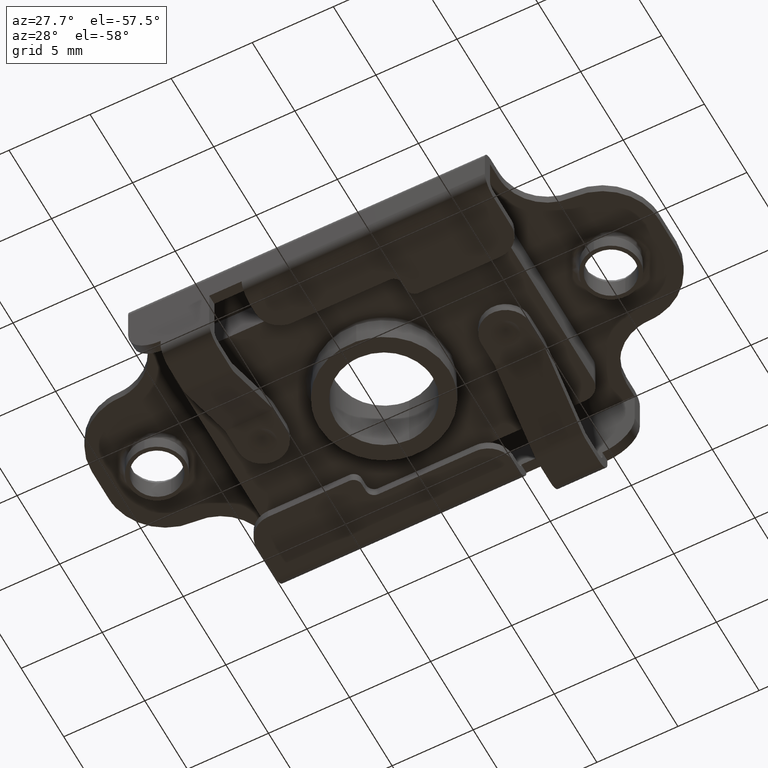
[diagram: clean part render]
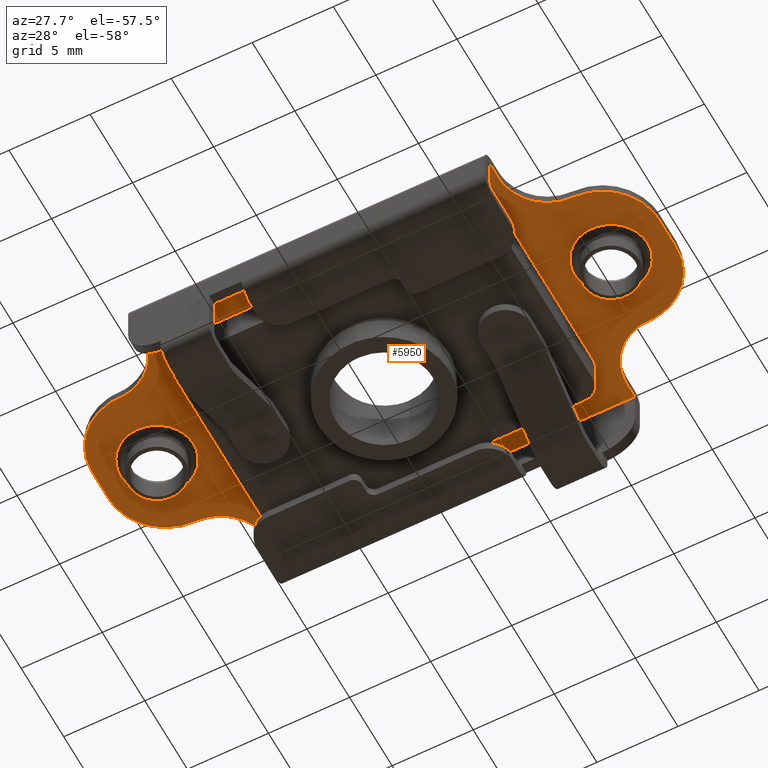
[diagram: same view with one face highlighted and labeled with its STEP entity id]
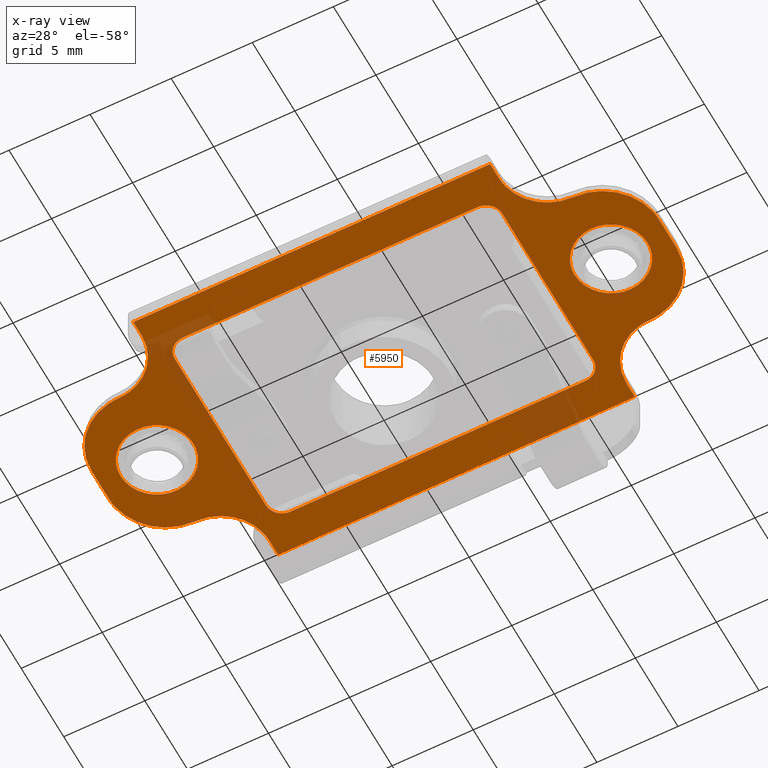
[diagram: x-ray of the same camera — body ghosted, the highlighted face saturated]
A machine part, auxiliary view. The second image highlights one B-rep face of the part: STEP entity #5950.
The next image is the same camera in x-ray: the body ghosted, the highlighted face saturated — about 6% of this face is hidden behind the body in this view.
In plain terms, the highlighted face is a freeform B-spline surface patch.
Its self-contained STEP definition (entity closure, byte-faithful):
#2205=CARTESIAN_POINT('',(16.249822349272051,0.028273589735216,-0.600000000000000));
#2206=VERTEX_POINT('',#2205);
#2220=CARTESIAN_POINT('',(11.750177651380509,-0.028273589695669,-0.600000000000000));
#2221=VERTEX_POINT('',#2220);
#2222=CARTESIAN_POINT('',(16.249822349272051,0.028273589735216,-0.600000000000000));
#2223=CARTESIAN_POINT('',(16.249868961176379,-0.155074582980609,-0.600000000000001));
#2224=CARTESIAN_POINT('',(16.214890493815862,-0.439214127587054,-0.600000000000001));
#2225=CARTESIAN_POINT('',(16.085641356226049,-0.841600610339706,-0.600000000000000));
#2226=CARTESIAN_POINT('',(15.911022143107131,-1.186537129788026,-0.600000000000001));
#2227=CARTESIAN_POINT('',(15.658064069194070,-1.514856468076055,-0.600000000000006));
#2228=CARTESIAN_POINT('',(15.377650026891530,-1.767156618682035,-0.599999999999994));
#2229=CARTESIAN_POINT('',(15.047485700475100,-1.984110532247248,-0.600000000000011));
#2230=CARTESIAN_POINT('',(14.657678340711300,-2.151467989527296,-0.599999999999997));
#2231=CARTESIAN_POINT('',(14.151124650974531,-2.250332595561026,-0.599999999999995));
#2232=CARTESIAN_POINT('',(13.624675098206980,-2.229728872390857,-0.600000000000014));
#2233=CARTESIAN_POINT('',(13.137455468611890,-2.087234093256446,-0.599999999999975));
#2234=CARTESIAN_POINT('',(12.707756053630821,-1.856021670591385,-0.600000000000042));
#2235=CARTESIAN_POINT('',(12.376883656140951,-1.575442690137467,-0.599999999999991));
#2236=CARTESIAN_POINT('',(12.142748773478360,-1.279873596241708,-0.599999999999998));
#2237=CARTESIAN_POINT('',(11.969718028987620,-0.987530114943571,-0.600000000000002));
#2238=CARTESIAN_POINT('',(11.806550452481780,-0.586780904912975,-0.599999999999998));
#2239=CARTESIAN_POINT('',(11.752744092535041,-0.239100782048568,-0.600000000000008));
#2240=CARTESIAN_POINT('',(11.750177651380509,-0.028273589695669,-0.600000000000000));
#2241=B_SPLINE_CURVE_WITH_KNOTS('',3,(#2222,#2223,#2224,#2225,#2226,#2227,#2228,#2229,#2230,#2231,#2232,#2233,#2234,#2235,#2236,#2237,#2238,#2239,#2240),.UNSPECIFIED.,.F.,.U.,(4,1,1,1,1,1,1,1,1,1,1,1,1,1,1,1,4),(0.000000023455083,0.550022748523062,0.852546862055186,1.265069192032739,1.705097930552308,2.090127417276149,2.392650281685221,2.887671057599604,3.355216179780276,3.932705456186750,4.455255312223543,4.867779985581773,5.390311354890931,5.747839009956027,5.995349128207178,6.407886864951183,7.040405284820220),.UNSPECIFIED.);
#2242=EDGE_CURVE('',#2206,#2221,#2241,.T.);
#2289=CARTESIAN_POINT('',(11.750177651380509,-0.028273589695669,-0.600000000000000));
#2290=CARTESIAN_POINT('',(11.750070041499720,0.200922908752787,-0.600000000000000));
#2291=CARTESIAN_POINT('',(11.803872274193431,0.549152881083157,-0.600000000000000));
#2292=CARTESIAN_POINT('',(12.003521775819969,1.043753365192396,-0.599999999999999));
#2293=CARTESIAN_POINT('',(12.242773803916901,1.405873422915777,-0.600000000000000));
#2294=CARTESIAN_POINT('',(12.589035616590539,1.749210707887518,-0.600000000000001));
#2295=CARTESIAN_POINT('',(12.912940411698891,1.962040333866185,-0.599999999999991));
#2296=CARTESIAN_POINT('',(13.300010740291039,2.130976256539642,-0.600000000000004));
#2297=CARTESIAN_POINT('',(13.666584075650739,2.223599305264771,-0.599999999999999));
#2298=CARTESIAN_POINT('',(14.098418510393699,2.246256959715579,-0.600000000000001));
#2299=CARTESIAN_POINT('',(14.445503702015790,2.202654077450203,-0.600000000000000));
#2300=CARTESIAN_POINT('',(14.790391000212390,2.106383453410027,-0.600000000000000));
#2301=CARTESIAN_POINT('',(15.118273047621120,1.960063611459128,-0.600000000000000));
#2302=CARTESIAN_POINT('',(15.421239118802481,1.750707075522399,-0.600000000000000));
#2303=CARTESIAN_POINT('',(15.674495023136959,1.510544701272499,-0.600000000000001));
#2304=CARTESIAN_POINT('',(15.857254917510421,1.279877299312730,-0.599999999999988));
#2305=CARTESIAN_POINT('',(16.030282789167241,0.987530370707231,-0.600000000000044));
#2306=CARTESIAN_POINT('',(16.193444749995621,0.586780025677450,-0.599999999999877));
#2307=CARTESIAN_POINT('',(16.247260407342981,0.239101058647580,-0.600000000000136));
#2308=CARTESIAN_POINT('',(16.249822349272051,0.028273589735216,-0.600000000000000));
#2309=B_SPLINE_CURVE_WITH_KNOTS('',3,(#2289,#2290,#2291,#2292,#2293,#2294,#2295,#2296,#2297,#2298,#2299,#2300,#2301,#2302,#2303,#2304,#2305,#2306,#2307,#2308),.UNSPECIFIED.,.F.,.U.,(4,1,1,1,1,1,1,1,1,1,1,1,1,1,1,1,1,4),(0.000000023418310,0.687520424350454,1.045057111000021,1.595089425779893,1.980118746482583,2.502658285844771,2.750168521725002,3.245198569147865,3.630188719641747,4.042714709031768,4.290230233384669,4.702761100596416,5.115291661199729,5.390311354858740,5.747839009923992,5.995349128175244,6.407886864919536,7.040405284789035),.UNSPECIFIED.);
#2310=EDGE_CURVE('',#2221,#2206,#2309,.T.);
#2339=CARTESIAN_POINT('',(-11.750178108602030,0.028269875175571,-0.600000000000510));
#2340=VERTEX_POINT('',#2339);
#2354=CARTESIAN_POINT('',(-11.749999999998700,0.0,-0.600000000000000));
#2355=VERTEX_POINT('',#2354);
#2356=CARTESIAN_POINT('',(-11.750178108602022,0.028269875175571,-0.600000000000510));
#2357=CARTESIAN_POINT('',(-11.750000252328791,0.014135495481185,-0.600000000000255));
#2358=CARTESIAN_POINT('',(-11.749999999998700,0.0,-0.600000000000000));
#2366=(BOUNDED_CURVE()B_SPLINE_CURVE(2,(#2356,#2357,#2358),.UNSPECIFIED.,.F.,.U.)B_SPLINE_CURVE_WITH_KNOTS((3,3),(0.497784585790868,0.500000000000000),.UNSPECIFIED.)CURVE()GEOMETRIC_REPRESENTATION_ITEM()RATIONAL_B_SPLINE_CURVE((0.994854962811093,0.997404480805129,1.0))REPRESENTATION_ITEM(''));
#2367=EDGE_CURVE('',#2340,#2355,#2366,.T.);
#2369=CARTESIAN_POINT('',(-16.249821891395381,-0.028269875175571,-0.600000000000510));
#2370=VERTEX_POINT('',#2369);
#2371=CARTESIAN_POINT('',(-11.749999999998700,0.0,-0.600000000000000));
#2372=CARTESIAN_POINT('',(-11.749956235476899,-0.183342578748912,-0.600000000000000));
#2373=CARTESIAN_POINT('',(-11.789440152652141,-0.504165841099561,-0.600000000000003));
#2374=CARTESIAN_POINT('',(-11.935190249514401,-0.921306614148026,-0.600000000000024));
#2375=CARTESIAN_POINT('',(-12.140674529128541,-1.291072558426771,-0.600000000000043));
#2376=CARTESIAN_POINT('',(-12.442473395216821,-1.651843005528050,-0.600000000000078));
#2377=CARTESIAN_POINT('',(-12.819763638754660,-1.933842452002718,-0.600000000000133));
#2378=CARTESIAN_POINT('',(-13.185843180060701,-2.106212956163256,-0.600000000000149));
#2379=CARTESIAN_POINT('',(-13.511256422455739,-2.204575305044570,-0.600000000000232));
#2380=CARTESIAN_POINT('',(-13.875126045774250,-2.258404691218514,-0.600000000000206));
#2381=CARTESIAN_POINT('',(-14.271008172442130,-2.246374590128269,-0.600000000000284));
#2382=CARTESIAN_POINT('',(-14.693598461891810,-2.154657851744259,-0.600000000000348));
#2383=CARTESIAN_POINT('',(-15.049659799025640,-2.002781560055166,-0.600000000000363));
#2384=CARTESIAN_POINT('',(-15.396792391704100,-1.778166270986065,-0.600000000000434));
#2385=CARTESIAN_POINT('',(-15.721899218648799,-1.478120319890378,-0.600000000000437));
#2386=CARTESIAN_POINT('',(-15.992771907101700,-1.081535064044132,-0.600000000000497));
#2387=CARTESIAN_POINT('',(-16.193450028831400,-0.586746660941460,-0.600000000000475));
#2388=CARTESIAN_POINT('',(-16.247262637047861,-0.239101691505174,-0.600000000000546));
#2389=CARTESIAN_POINT('',(-16.249821891395381,-0.028269875175571,-0.600000000000510));
#2390=B_SPLINE_CURVE_WITH_KNOTS('',3,(#2371,#2372,#2373,#2374,#2375,#2376,#2377,#2378,#2379,#2380,#2381,#2382,#2383,#2384,#2385,#2386,#2387,#2388,#2389),.UNSPECIFIED.,.F.,.U.,(4,1,1,1,1,1,1,1,1,1,1,1,1,1,1,1,4),(0.000000083039314,0.550019181820805,0.962544333547460,1.320059997413197,1.815093816450222,2.365124562014448,2.722654968665218,3.025154897589392,3.382694731700840,3.822671495439055,4.207695085859922,4.675234515314630,4.977751087349565,5.445278737984914,5.995308736710900,6.407842729461685,7.040356271197775),.UNSPECIFIED.);
#2391=EDGE_CURVE('',#2355,#2370,#2390,.T.);
#2437=CARTESIAN_POINT('',(-16.249999999998700,0.0,-0.600000000000000));
#2438=VERTEX_POINT('',#2437);
#2439=CARTESIAN_POINT('',(-16.249821891395378,-0.028269875175571,-0.600000000000510));
#2440=CARTESIAN_POINT('',(-16.249999747668603,-0.014135495481185,-0.600000000000255));
#2441=CARTESIAN_POINT('',(-16.249999999998700,0.0,-0.600000000000000));
#2449=(BOUNDED_CURVE()B_SPLINE_CURVE(2,(#2439,#2440,#2441),.UNSPECIFIED.,.F.,.U.)B_SPLINE_CURVE_WITH_KNOTS((3,3),(0.997784585790868,1.0),.UNSPECIFIED.)CURVE()GEOMETRIC_REPRESENTATION_ITEM()RATIONAL_B_SPLINE_CURVE((0.994854962811093,0.997404480805129,1.0))REPRESENTATION_ITEM(''));
#2450=EDGE_CURVE('',#2370,#2438,#2449,.T.);
#2452=CARTESIAN_POINT('',(-16.249999999998700,0.0,-0.600000000000000));
#2453=CARTESIAN_POINT('',(-16.250033262811979,0.183338840590910,-0.600000000000001));
#2454=CARTESIAN_POINT('',(-16.202714118717989,0.568352588159576,-0.600000000000003));
#2455=CARTESIAN_POINT('',(-16.021386253188631,1.023834810570992,-0.600000000000032));
#2456=CARTESIAN_POINT('',(-15.794536155981771,1.369511871202419,-0.600000000000050));
#2457=CARTESIAN_POINT('',(-15.551806512359169,1.645674260123426,-0.600000000000079));
#2458=CARTESIAN_POINT('',(-15.263391889499010,1.875300846549942,-0.600000000000123));
#2459=CARTESIAN_POINT('',(-14.916914657311770,2.065165626361963,-0.600000000000131));
#2460=CARTESIAN_POINT('',(-14.604744814468051,2.176430734690868,-0.600000000000192));
#2461=CARTESIAN_POINT('',(-14.252982352881370,2.243940470345719,-0.600000000000232));
#2462=CARTESIAN_POINT('',(-13.885311384616740,2.259746003539489,-0.600000000000266));
#2463=CARTESIAN_POINT('',(-13.411038921970510,2.192786030630392,-0.600000000000324));
#2464=CARTESIAN_POINT('',(-12.937194044265420,2.007568378633656,-0.600000000000377));
#2465=CARTESIAN_POINT('',(-12.574851730337610,1.753724290934835,-0.600000000000425));
#2466=CARTESIAN_POINT('',(-12.291390888593799,1.478940458953731,-0.600000000000454));
#2467=CARTESIAN_POINT('',(-12.037465168424200,1.139416210193813,-0.600000000000471));
#2468=CARTESIAN_POINT('',(-11.813599454709030,0.632498147490441,-0.600000000000517));
#2469=CARTESIAN_POINT('',(-11.752742065225959,0.239101032148147,-0.600000000000485));
#2470=CARTESIAN_POINT('',(-11.750178108602030,0.028269875175571,-0.600000000000510));
#2471=B_SPLINE_CURVE_WITH_KNOTS('',3,(#2452,#2453,#2454,#2455,#2456,#2457,#2458,#2459,#2460,#2461,#2462,#2463,#2464,#2465,#2466,#2467,#2468,#2469,#2470),.UNSPECIFIED.,.F.,.U.,(4,1,1,1,1,1,1,1,1,1,1,1,1,1,1,1,4),(0.000000083083259,0.550019181861420,1.155058916824270,1.457574150048070,1.787591775014343,2.255116090851423,2.557635025094956,2.970170823171228,3.245185369694864,3.630174966332410,4.070187167839110,4.675234515329521,5.142757976905155,5.390273561231716,5.857806580141395,6.407842729465715,7.040356271197805),.UNSPECIFIED.);
#2472=EDGE_CURVE('',#2438,#2340,#2471,.T.);
#3224=CARTESIAN_POINT('',(-11.000000000000901,8.500000000000000,-0.600000000000000));
#3225=VERTEX_POINT('',#3224);
#3281=CARTESIAN_POINT('',(11.000000000000600,8.500000000000000,-0.600000000000000));
#3282=VERTEX_POINT('',#3281);
#3288=CARTESIAN_POINT('',(11.000000000000600,8.500000000000000,-0.600000000000000));
#3289=CARTESIAN_POINT('',(-11.000000000000901,8.500000000000000,-0.600000000000000));
#3290=QUASI_UNIFORM_CURVE('',1,(#3288,#3289),.UNSPECIFIED.,.F.,.U.);
#3291=EDGE_CURVE('',#3282,#3225,#3290,.T.);
#4201=CARTESIAN_POINT('',(-9.100000000000000,6.350000000000000,-0.600000000000000));
#4202=VERTEX_POINT('',#4201);
#4203=CARTESIAN_POINT('',(9.100000000000000,6.350000000000000,-0.599999999999712));
#4204=VERTEX_POINT('',#4203);
#4205=CARTESIAN_POINT('',(-9.100000000000000,6.350000000000000,-0.600000000000000));
#4206=CARTESIAN_POINT('',(9.100000000000000,6.350000000000000,-0.599999999999712));
#4207=QUASI_UNIFORM_CURVE('',1,(#4205,#4206),.UNSPECIFIED.,.F.,.U.);
#4208=EDGE_CURVE('',#4202,#4204,#4207,.T.);
#4238=CARTESIAN_POINT('',(-10.100000000000000,5.350000000000000,-0.600000000000045));
#4239=VERTEX_POINT('',#4238);
#4240=CARTESIAN_POINT('',(-10.100000000000000,5.350000000000000,-0.600000000000045));
#4241=CARTESIAN_POINT('',(-10.100000000000001,6.350000000000000,-0.599999999999712));
#4242=CARTESIAN_POINT('',(-9.100000000000000,6.350000000000000,-0.599999999999712));
#4250=(BOUNDED_CURVE()B_SPLINE_CURVE(2,(#4240,#4241,#4242),.UNSPECIFIED.,.F.,.U.)CURVE()GEOMETRIC_REPRESENTATION_ITEM()QUASI_UNIFORM_CURVE()RATIONAL_B_SPLINE_CURVE((1.0,0.707106781186548,1.0))REPRESENTATION_ITEM(''));
#4251=EDGE_CURVE('',#4239,#4202,#4250,.T.);
#4268=CARTESIAN_POINT('',(-10.100000000000000,-5.350000000000000,-0.600000000000000));
#4269=VERTEX_POINT('',#4268);
#4270=CARTESIAN_POINT('',(-10.100000000000000,-5.350000000000000,-0.600000000000000));
#4271=CARTESIAN_POINT('',(-10.100000000000000,5.350000000000000,-0.600000000000045));
#4272=QUASI_UNIFORM_CURVE('',1,(#4270,#4271),.UNSPECIFIED.,.F.,.U.);
#4273=EDGE_CURVE('',#4269,#4239,#4272,.T.);
#4299=CARTESIAN_POINT('',(-9.100000000000000,-6.350000000000000,-0.600000000000045));
#4300=VERTEX_POINT('',#4299);
#4301=CARTESIAN_POINT('',(-9.100000000000000,-6.350000000000000,-0.600000000000045));
#4302=CARTESIAN_POINT('',(-10.100000000000001,-6.350000000000000,-0.599999999999712));
#4303=CARTESIAN_POINT('',(-10.100000000000000,-5.350000000000000,-0.599999999999712));
#4311=(BOUNDED_CURVE()B_SPLINE_CURVE(2,(#4301,#4302,#4303),.UNSPECIFIED.,.F.,.U.)CURVE()GEOMETRIC_REPRESENTATION_ITEM()QUASI_UNIFORM_CURVE()RATIONAL_B_SPLINE_CURVE((1.0,0.707106781186548,1.0))REPRESENTATION_ITEM(''));
#4312=EDGE_CURVE('',#4300,#4269,#4311,.T.);
#4329=CARTESIAN_POINT('',(9.100000000000000,-6.350000000000000,-0.600000000000000));
#4330=VERTEX_POINT('',#4329);
#4331=CARTESIAN_POINT('',(9.100000000000000,-6.350000000000000,-0.600000000000000));
#4332=CARTESIAN_POINT('',(-9.100000000000000,-6.350000000000000,-0.600000000000045));
#4333=QUASI_UNIFORM_CURVE('',1,(#4331,#4332),.UNSPECIFIED.,.F.,.U.);
#4334=EDGE_CURVE('',#4330,#4300,#4333,.T.);
#4360=CARTESIAN_POINT('',(10.100000000000000,-5.350000000000000,-0.600000000000045));
#4361=VERTEX_POINT('',#4360);
#4362=CARTESIAN_POINT('',(10.100000000000000,-5.350000000000000,-0.600000000000045));
#4363=CARTESIAN_POINT('',(10.100000000000001,-6.350000000000000,-0.599999999999712));
#4364=CARTESIAN_POINT('',(9.100000000000000,-6.350000000000000,-0.599999999999712));
#4372=(BOUNDED_CURVE()B_SPLINE_CURVE(2,(#4362,#4363,#4364),.UNSPECIFIED.,.F.,.U.)CURVE()GEOMETRIC_REPRESENTATION_ITEM()QUASI_UNIFORM_CURVE()RATIONAL_B_SPLINE_CURVE((1.0,0.707106781186548,1.0))REPRESENTATION_ITEM(''));
#4373=EDGE_CURVE('',#4361,#4330,#4372,.T.);
#4390=CARTESIAN_POINT('',(10.100000000000000,5.350000000000000,-0.600000000000000));
#4391=VERTEX_POINT('',#4390);
#4392=CARTESIAN_POINT('',(10.100000000000000,5.350000000000000,-0.600000000000000));
#4393=CARTESIAN_POINT('',(10.100000000000000,-5.350000000000000,-0.600000000000045));
#4394=QUASI_UNIFORM_CURVE('',1,(#4392,#4393),.UNSPECIFIED.,.F.,.U.);
#4395=EDGE_CURVE('',#4391,#4361,#4394,.T.);
#4421=CARTESIAN_POINT('',(9.100000000000000,6.350000000000000,-0.599999999999712));
#4422=CARTESIAN_POINT('',(10.100000000000001,6.350000000000000,-0.599999999999712));
#4423=CARTESIAN_POINT('',(10.100000000000000,5.350000000000000,-0.599999999999712));
#4431=(BOUNDED_CURVE()B_SPLINE_CURVE(2,(#4421,#4422,#4423),.UNSPECIFIED.,.F.,.U.)CURVE()GEOMETRIC_REPRESENTATION_ITEM()QUASI_UNIFORM_CURVE()RATIONAL_B_SPLINE_CURVE((1.0,0.707106781186548,1.0))REPRESENTATION_ITEM(''));
#4432=EDGE_CURVE('',#4204,#4391,#4431,.T.);
#5328=CARTESIAN_POINT('',(11.000000000000480,-7.500000000000000,-0.600000000000045));
#5329=VERTEX_POINT('',#5328);
#5335=CARTESIAN_POINT('',(13.999999999998300,-4.500000000000000,-0.600000000000045));
#5336=VERTEX_POINT('',#5335);
#5337=CARTESIAN_POINT('',(13.999999999998300,-4.500000000000000,-0.600000000000045));
#5338=CARTESIAN_POINT('',(11.000000000000481,-4.500000000002181,-0.600000000000045));
#5339=CARTESIAN_POINT('',(11.000000000000480,-7.500000000000000,-0.600000000000045));
#5347=(BOUNDED_CURVE()B_SPLINE_CURVE(2,(#5337,#5338,#5339),.UNSPECIFIED.,.F.,.U.)CURVE()GEOMETRIC_REPRESENTATION_ITEM()QUASI_UNIFORM_CURVE()RATIONAL_B_SPLINE_CURVE((1.0,0.707106781186804,1.0))REPRESENTATION_ITEM(''));
#5348=EDGE_CURVE('',#5336,#5329,#5347,.T.);
#5374=CARTESIAN_POINT('',(17.499999999998298,-1.0,-0.600000000000045));
#5375=VERTEX_POINT('',#5374);
#5376=CARTESIAN_POINT('',(13.999999999998300,-4.500000000000001,-0.600000000000045));
#5377=CARTESIAN_POINT('',(17.499999999998302,-4.500000000000000,-0.600000000000045));
#5378=CARTESIAN_POINT('',(17.499999999998298,-1.0,-0.600000000000045));
#5386=(BOUNDED_CURVE()B_SPLINE_CURVE(2,(#5376,#5377,#5378),.UNSPECIFIED.,.F.,.U.)CURVE()GEOMETRIC_REPRESENTATION_ITEM()QUASI_UNIFORM_CURVE()RATIONAL_B_SPLINE_CURVE((1.0,0.707106781186547,1.0))REPRESENTATION_ITEM(''));
#5387=EDGE_CURVE('',#5336,#5375,#5386,.T.);
#5404=CARTESIAN_POINT('',(17.499999999998298,1.0,-0.600000000000045));
#5405=VERTEX_POINT('',#5404);
#5406=CARTESIAN_POINT('',(17.499999999998298,1.0,-0.600000000000045));
#5407=CARTESIAN_POINT('',(17.499999999998298,-1.0,-0.600000000000045));
#5408=QUASI_UNIFORM_CURVE('',1,(#5406,#5407),.UNSPECIFIED.,.F.,.U.);
#5409=EDGE_CURVE('',#5405,#5375,#5408,.T.);
#5435=CARTESIAN_POINT('',(14.000000000000480,4.500000000000000,-0.600000000000045));
#5436=VERTEX_POINT('',#5435);
#5437=CARTESIAN_POINT('',(17.499999999998298,1.0,-0.600000000000045));
#5438=CARTESIAN_POINT('',(17.499999999998302,4.499999999997817,-0.600000000000045));
#5439=CARTESIAN_POINT('',(14.000000000000480,4.500000000000001,-0.600000000000045));
#5447=(BOUNDED_CURVE()B_SPLINE_CURVE(2,(#5437,#5438,#5439),.UNSPECIFIED.,.F.,.U.)CURVE()GEOMETRIC_REPRESENTATION_ITEM()QUASI_UNIFORM_CURVE()RATIONAL_B_SPLINE_CURVE((1.0,0.707106781186768,1.0))REPRESENTATION_ITEM(''));
#5448=EDGE_CURVE('',#5405,#5436,#5447,.T.);
#5474=CARTESIAN_POINT('',(11.000000000000600,7.500000000000000,-0.600000000000045));
#5475=VERTEX_POINT('',#5474);
#5476=CARTESIAN_POINT('',(11.000000000000600,7.500000000000000,-0.600000000000045));
#5477=CARTESIAN_POINT('',(11.000000000000481,4.500000000000000,-0.600000000000045));
#5478=CARTESIAN_POINT('',(14.000000000000480,4.500000000000000,-0.600000000000045));
#5486=(BOUNDED_CURVE()B_SPLINE_CURVE(2,(#5476,#5477,#5478),.UNSPECIFIED.,.F.,.U.)CURVE()GEOMETRIC_REPRESENTATION_ITEM()QUASI_UNIFORM_CURVE()RATIONAL_B_SPLINE_CURVE((1.0,0.707106781186548,1.0))REPRESENTATION_ITEM(''));
#5487=EDGE_CURVE('',#5475,#5436,#5486,.T.);
#5510=CARTESIAN_POINT('',(11.000000000000600,8.500000000000000,-0.600000000000000));
#5511=CARTESIAN_POINT('',(11.000000000000600,7.500000000000000,-0.600000000000045));
#5512=QUASI_UNIFORM_CURVE('',1,(#5510,#5511),.UNSPECIFIED.,.F.,.U.);
#5513=EDGE_CURVE('',#3282,#5475,#5512,.T.);
#5555=CARTESIAN_POINT('',(-11.000000000000901,7.500000000000000,-0.600000000000045));
#5556=VERTEX_POINT('',#5555);
#5557=CARTESIAN_POINT('',(-11.000000000000901,7.500000000000000,-0.600000000000045));
#5558=CARTESIAN_POINT('',(-11.000000000000901,8.500000000000000,-0.600000000000000));
#5559=QUASI_UNIFORM_CURVE('',1,(#5557,#5558),.UNSPECIFIED.,.F.,.U.);
#5560=EDGE_CURVE('',#5556,#3225,#5559,.T.);
#5586=CARTESIAN_POINT('',(-13.999999999998700,4.500000000000000,-0.600000000000045));
#5587=VERTEX_POINT('',#5586);
#5588=CARTESIAN_POINT('',(-13.999999999998700,4.500000000000000,-0.600000000000045));
#5589=CARTESIAN_POINT('',(-11.000000000000901,4.500000000002200,-0.600000000000045));
#5590=CARTESIAN_POINT('',(-11.000000000000901,7.500000000000000,-0.600000000000045));
#5598=(BOUNDED_CURVE()B_SPLINE_CURVE(2,(#5588,#5589,#5590),.UNSPECIFIED.,.F.,.U.)CURVE()GEOMETRIC_REPRESENTATION_ITEM()QUASI_UNIFORM_CURVE()RATIONAL_B_SPLINE_CURVE((1.0,0.707106781186807,1.0))REPRESENTATION_ITEM(''));
#5599=EDGE_CURVE('',#5587,#5556,#5598,.T.);
#5625=CARTESIAN_POINT('',(-17.499999999998700,1.0,-0.600000000000045));
#5626=VERTEX_POINT('',#5625);
#5627=CARTESIAN_POINT('',(-13.999999999998700,4.500000000000001,-0.600000000000045));
#5628=CARTESIAN_POINT('',(-17.499999999998700,4.500000000000000,-0.600000000000045));
#5629=CARTESIAN_POINT('',(-17.499999999998700,1.0,-0.600000000000045));
#5637=(BOUNDED_CURVE()B_SPLINE_CURVE(2,(#5627,#5628,#5629),.UNSPECIFIED.,.F.,.U.)CURVE()GEOMETRIC_REPRESENTATION_ITEM()QUASI_UNIFORM_CURVE()RATIONAL_B_SPLINE_CURVE((1.0,0.707106781186547,1.0))REPRESENTATION_ITEM(''));
#5638=EDGE_CURVE('',#5587,#5626,#5637,.T.);
#5655=CARTESIAN_POINT('',(-17.499999999998700,-1.0,-0.600000000000045));
#5656=VERTEX_POINT('',#5655);
#5657=CARTESIAN_POINT('',(-17.499999999998700,-1.0,-0.600000000000045));
#5658=CARTESIAN_POINT('',(-17.499999999998700,1.0,-0.600000000000045));
#5659=QUASI_UNIFORM_CURVE('',1,(#5657,#5658),.UNSPECIFIED.,.F.,.U.);
#5660=EDGE_CURVE('',#5656,#5626,#5659,.T.);
#5686=CARTESIAN_POINT('',(-14.000000000000901,-4.500000000000000,-0.600000000000045));
#5687=VERTEX_POINT('',#5686);
#5688=CARTESIAN_POINT('',(-17.499999999998700,-1.0,-0.600000000000045));
#5689=CARTESIAN_POINT('',(-17.499999999998696,-4.499999999997799,-0.600000000000045));
#5690=CARTESIAN_POINT('',(-14.000000000000901,-4.500000000000001,-0.600000000000045));
#5698=(BOUNDED_CURVE()B_SPLINE_CURVE(2,(#5688,#5689,#5690),.UNSPECIFIED.,.F.,.U.)CURVE()GEOMETRIC_REPRESENTATION_ITEM()QUASI_UNIFORM_CURVE()RATIONAL_B_SPLINE_CURVE((1.0,0.707106781186770,1.0))REPRESENTATION_ITEM(''));
#5699=EDGE_CURVE('',#5656,#5687,#5698,.T.);
#5725=CARTESIAN_POINT('',(-11.000000000000901,-7.500000000000000,-0.600000000000045));
#5726=VERTEX_POINT('',#5725);
#5727=CARTESIAN_POINT('',(-11.000000000000901,-7.500000000000000,-0.600000000000045));
#5728=CARTESIAN_POINT('',(-11.000000000000901,-4.500000000000000,-0.600000000000045));
#5729=CARTESIAN_POINT('',(-14.000000000000901,-4.500000000000000,-0.600000000000045));
#5737=(BOUNDED_CURVE()B_SPLINE_CURVE(2,(#5727,#5728,#5729),.UNSPECIFIED.,.F.,.U.)CURVE()GEOMETRIC_REPRESENTATION_ITEM()QUASI_UNIFORM_CURVE()RATIONAL_B_SPLINE_CURVE((1.0,0.707106781186548,1.0))REPRESENTATION_ITEM(''));
#5738=EDGE_CURVE('',#5726,#5687,#5737,.T.);
#5761=CARTESIAN_POINT('',(-11.000000000000901,-8.500000000000000,-0.600000000000000));
#5762=VERTEX_POINT('',#5761);
#5763=CARTESIAN_POINT('',(-11.000000000000901,-8.500000000000000,-0.600000000000000));
#5764=CARTESIAN_POINT('',(-11.000000000000901,-7.500000000000000,-0.600000000000045));
#5765=QUASI_UNIFORM_CURVE('',1,(#5763,#5764),.UNSPECIFIED.,.F.,.U.);
#5766=EDGE_CURVE('',#5762,#5726,#5765,.T.);
#5887=CARTESIAN_POINT('',(11.000000000000600,-8.500000000000000,-0.600000000000000));
#5888=VERTEX_POINT('',#5887);
#5894=CARTESIAN_POINT('',(11.000000000000480,-7.500000000000000,-0.600000000000045));
#5895=CARTESIAN_POINT('',(11.000000000000600,-8.500000000000000,-0.600000000000000));
#5896=QUASI_UNIFORM_CURVE('',1,(#5894,#5895),.UNSPECIFIED.,.F.,.U.);
#5897=EDGE_CURVE('',#5329,#5888,#5896,.T.);
#5903=CARTESIAN_POINT('',(-19.248249932161759,9.349149967050698,-0.600000000000000));
#5904=CARTESIAN_POINT('',(19.248250870934509,9.349149967050698,-0.600000000000000));
#5905=CARTESIAN_POINT('',(-19.248249932161759,-9.349150423026233,-0.600000000000000));
#5906=CARTESIAN_POINT('',(19.248250870934509,-9.349150423026233,-0.600000000000000));
#5907=B_SPLINE_SURFACE_WITH_KNOTS('',1,1,((#5903,#5905),(#5904,#5906)),.UNSPECIFIED.,.F.,.F.,.U.,(2,2),(2,2),(0.0,38.496500803096268),(0.0,18.698300390076930),.UNSPECIFIED.);
#5908=ORIENTED_EDGE('',*,*,#3291,.F.);
#5909=ORIENTED_EDGE('',*,*,#5513,.T.);
#5910=ORIENTED_EDGE('',*,*,#5487,.T.);
#5911=ORIENTED_EDGE('',*,*,#5448,.F.);
#5912=ORIENTED_EDGE('',*,*,#5409,.T.);
#5913=ORIENTED_EDGE('',*,*,#5387,.F.);
#5914=ORIENTED_EDGE('',*,*,#5348,.T.);
#5915=ORIENTED_EDGE('',*,*,#5897,.T.);
#5916=CARTESIAN_POINT('',(-11.000000000000901,-8.500000000000000,-0.600000000000000));
#5917=CARTESIAN_POINT('',(11.000000000000600,-8.500000000000000,-0.600000000000000));
#5918=QUASI_UNIFORM_CURVE('',1,(#5916,#5917),.UNSPECIFIED.,.F.,.U.);
#5919=EDGE_CURVE('',#5762,#5888,#5918,.T.);
#5920=ORIENTED_EDGE('',*,*,#5919,.F.);
#5921=ORIENTED_EDGE('',*,*,#5766,.T.);
#5922=ORIENTED_EDGE('',*,*,#5738,.T.);
#5923=ORIENTED_EDGE('',*,*,#5699,.F.);
#5924=ORIENTED_EDGE('',*,*,#5660,.T.);
#5925=ORIENTED_EDGE('',*,*,#5638,.F.);
#5926=ORIENTED_EDGE('',*,*,#5599,.T.);
#5927=ORIENTED_EDGE('',*,*,#5560,.T.);
#5928=EDGE_LOOP('',(#5908,#5909,#5910,#5911,#5912,#5913,#5914,#5915,#5920,#5921,#5922,#5923,#5924,#5925,#5926,#5927));
#5929=FACE_OUTER_BOUND('',#5928,.T.);
#5930=ORIENTED_EDGE('',*,*,#2242,.F.);
#5931=ORIENTED_EDGE('',*,*,#2310,.F.);
#5932=EDGE_LOOP('',(#5930,#5931));
#5933=FACE_BOUND('',#5932,.T.);
#5934=ORIENTED_EDGE('',*,*,#4432,.F.);
#5935=ORIENTED_EDGE('',*,*,#4208,.F.);
#5936=ORIENTED_EDGE('',*,*,#4251,.F.);
#5937=ORIENTED_EDGE('',*,*,#4273,.F.);
#5938=ORIENTED_EDGE('',*,*,#4312,.F.);
#5939=ORIENTED_EDGE('',*,*,#4334,.F.);
#5940=ORIENTED_EDGE('',*,*,#4373,.F.);
#5941=ORIENTED_EDGE('',*,*,#4395,.F.);
#5942=EDGE_LOOP('',(#5934,#5935,#5936,#5937,#5938,#5939,#5940,#5941));
#5943=FACE_BOUND('',#5942,.T.);
#5944=ORIENTED_EDGE('',*,*,#2391,.F.);
#5945=ORIENTED_EDGE('',*,*,#2367,.F.);
#5946=ORIENTED_EDGE('',*,*,#2472,.F.);
#5947=ORIENTED_EDGE('',*,*,#2450,.F.);
#5948=EDGE_LOOP('',(#5944,#5945,#5946,#5947));
#5949=FACE_BOUND('',#5948,.T.);
#5950=ADVANCED_FACE('',(#5929,#5933,#5943,#5949),#5907,.T.);